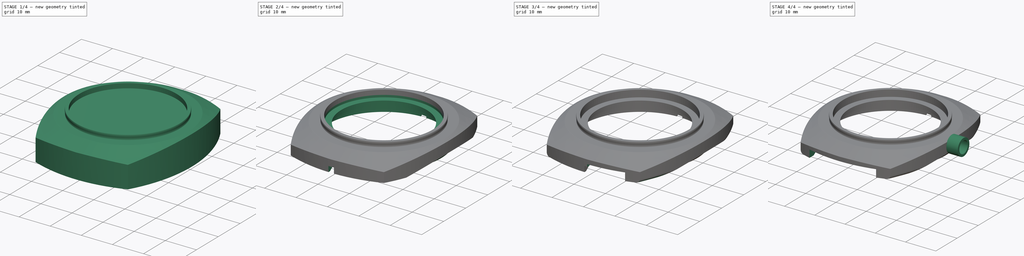
[diagram: build sequence overview — one tinted view per stage of 4, left to right]
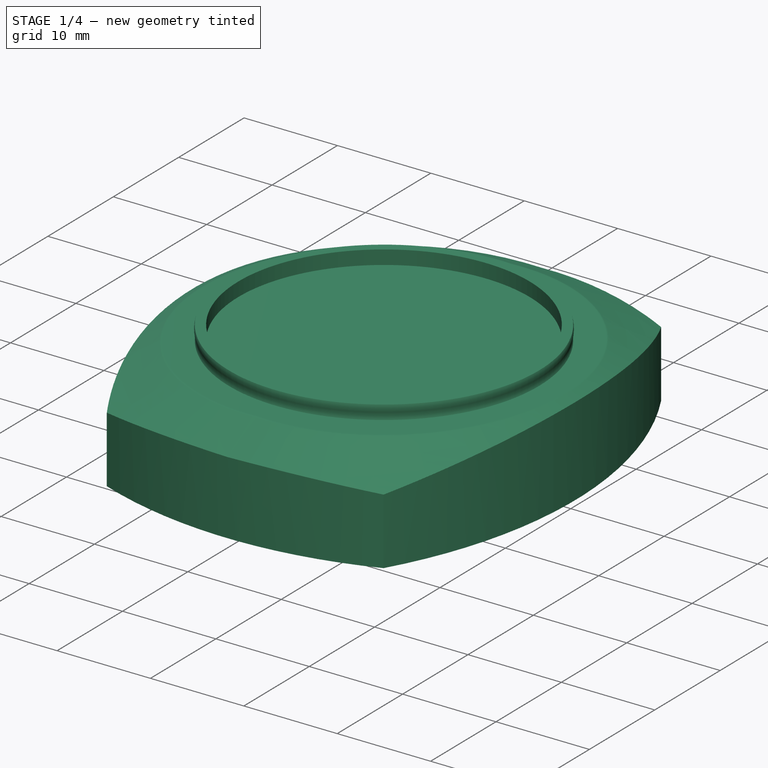
[diagram: stage 1 of 4 — iso view after this stage's code; geometry added in this stage tinted green]
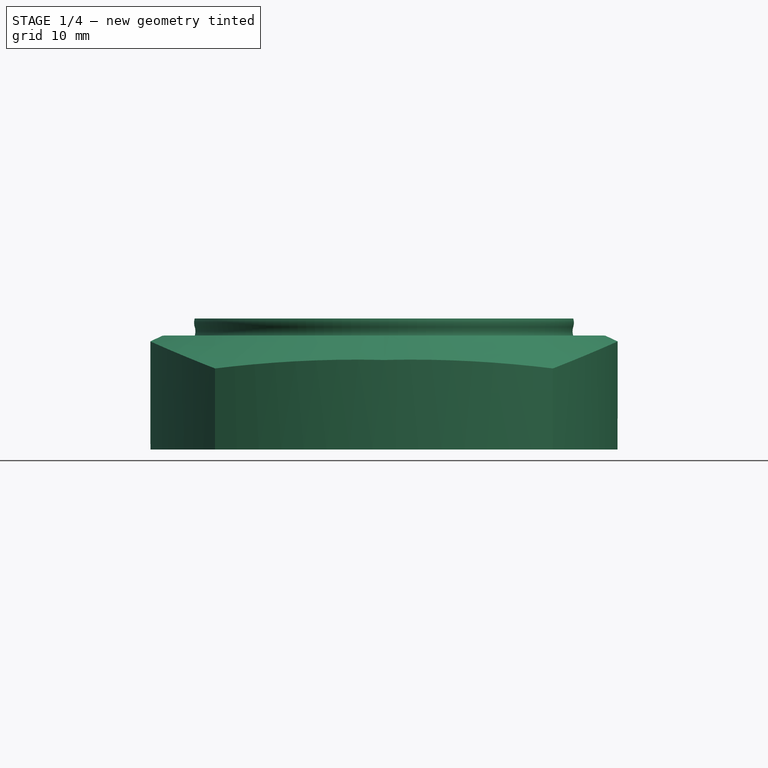
[diagram: stage 1 of 4 — front view after this stage's code; geometry added in this stage tinted green]
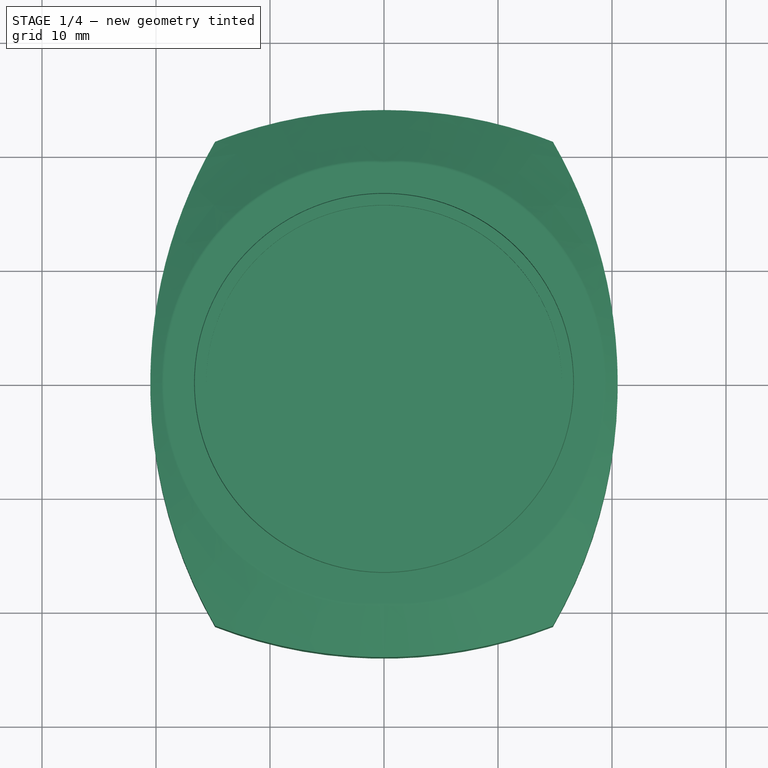
[diagram: stage 1 of 4 — top view after this stage's code; geometry added in this stage tinted green]
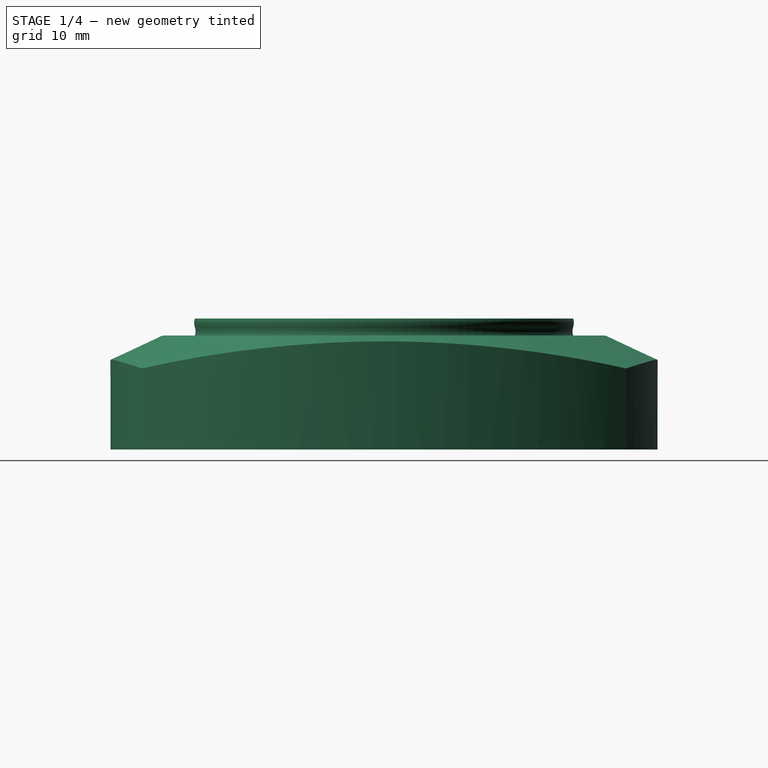
[diagram: stage 1 of 4 — right view after this stage's code; geometry added in this stage tinted green]
FCSTD DOCUMENT  (FreeCAD 0.19R20415 (Git))
Label: Vostok_Amphibia_Case_090
License: All rights reserved
LicenseURL: http://en.wikipedia.org/wiki/All_rights_reserved
objects: Sketcher::SketchObject×17, PartDesign::Plane×5, PartDesign::Mirrored×5, PartDesign::SubtractivePipe×3, PartDesign::Pocket×3, PartDesign::Pad×2, PartDesign::Groove×2, Image::ImagePlane×2, PartDesign::MultiTransform×2, PartDesign::Point×1, PartDesign::Revolution×1, PartDesign::Body×1
note: 53 computed .brp shape members not serialized (recipe doc carries the construction recipe); baked Part::Feature solids carry a one-line shape summary decoded from their .brp

FEATURE [PartDesign::Point] DatumPoint
  AttacherType = Attacher::AttachEnginePoint
FEATURE [Sketcher::SketchObject] Sketch009
  MapMode = 5
  Placement = pos=(0,0,10) rot=(0,0,1;0rad)
  sketch-geometry (7):
    g0: ArcOfEllipse CenterX=0 CenterY=0 CenterZ=0 NormalX=0 NormalY=0 NormalZ=1 MajorRadius=23.015 MinorRadius=22 AngleXU=1.5708 StartAngle=0 EndAngle=3.14159
    g1: LineSegment [constr] StartX=0 StartY=23.015 StartZ=0 EndX=0 EndY=-23.015 EndZ=0
    g2: LineSegment [constr] StartX=-22 StartY=3.8e-15 StartZ=0 EndX=22 EndY=-3.8e-15 EndZ=0
    g3: GeomPoint X=-1.23e-14 Y=6.75945 Z=0
    g4: GeomPoint X=1.23e-14 Y=-6.75945 Z=0
    g5: LineSegment StartX=-10 StartY=20.5 StartZ=0 EndX=0 EndY=20.5 EndZ=0
    g6: LineSegment StartX=-7.1e-15 StartY=-20.5 StartZ=0 EndX=-10 EndY=-20.5 EndZ=0
  constraints (14):
    c: InternalAlignment(g1-g4 -> g0) x4
    c: PointOnObject(g0,g-1)
    c: Perpendicular(g-1,g1)
    c: DistanceX(g2) = -22
    c: PointOnObject(g1,g-2)
    c: PointOnObject(g0,g-2)
    c: PointOnObject(g0,g-2)
    c: PointOnObject(g5,g-2)
    c: Horizontal(g6)
    c: Symmetric(g6,g5,g-1)
    c: DistanceY(g6) = -20.5
    c: Symmetric(g5,g6,g2)
    c: DistanceX(g5) = -10
    c: PointOnObject(g6,g0)
FEATURE [PartDesign::Plane] DatumPlane
  Length = 60
  MapMode = 5
  Placement = pos=(0,0,0) rot=(0.57735,0.57735,0.57735;2.0944rad)
  ResizeMode = 0
  Support = -> [YZ_Plane]
  Width = 60
FEATURE [Sketcher::SketchObject] Sketch003
  MapMode = 5
  Placement = pos=(0,0,0) rot=(0.57735,0.57735,0.57735;2.0944rad)
  Support = -> [DatumPlane]
  sketch-geometry (6):
    g0: ArcOfCircle CenterX=-19.2887 CenterY=9.5 CenterZ=0 NormalX=0 NormalY=0 NormalZ=1 AngleXU=0 Radius=0.5 StartAngle=1.5708 EndAngle=2.00713
    g1: LineSegment StartX=-19.5 StartY=10 StartZ=0 EndX=-19.2887 EndY=10 EndZ=0
    g2: LineSegment StartX=-19.5 StartY=9.95315 StartZ=0 EndX=-29.3557 EndY=5.35739 EndZ=0
    g3: ArcOfCircle CenterX=-29.25 CenterY=5.13081 CenterZ=0 NormalX=0 NormalY=0 NormalZ=1 AngleXU=0 Radius=0.25 StartAngle=2.00713 EndAngle=3.14159
    g4: LineSegment StartX=-19.5 StartY=10 StartZ=0 EndX=-29.5 EndY=10 EndZ=0
    g5: LineSegment StartX=-29.5 StartY=10 StartZ=0 EndX=-29.5 EndY=5.13081 EndZ=0
FEATURE [Sketcher::SketchObject] Sketch011
  MapMode = 5
  Placement = pos=(0,0,0) rot=(0.57735,0.57735,0.57735;2.0944rad)
  Support = -> [DatumPlane]
  sketch-geometry (6):
    g0: LineSegment StartX=19.5 StartY=9.95315 StartZ=0 EndX=29.3557 EndY=5.35739 EndZ=0
    g1: ArcOfCircle CenterX=29.25 CenterY=5.13081 CenterZ=0 NormalX=0 NormalY=0 NormalZ=1 AngleXU=0 Radius=0.25 StartAngle=8e-16 EndAngle=1.13446
    g2: ArcOfCircle CenterX=19.2887 CenterY=9.5 CenterZ=0 NormalX=0 NormalY=0 NormalZ=1 AngleXU=0 Radius=0.5 StartAngle=1.13446 EndAngle=1.5708
    g3: LineSegment StartX=19.5 StartY=10 StartZ=0 EndX=19.2887 EndY=10 EndZ=0
    g4: LineSegment StartX=19.5 StartY=10 StartZ=0 EndX=29.5 EndY=10 EndZ=0
    g5: LineSegment StartX=29.5 StartY=10 StartZ=0 EndX=29.5 EndY=5.13081 EndZ=0
  constraints (16):
    c: Tangent(g0,g1) = 1.5708
    c: Tangent(g0,g2) = 1.5708
    c: Horizontal(g3)
    c: Tangent(g2,g3) = -1.5708
    c: Radius(g1) = 0.25
    c: Vertical(g0,g3)
    c: Radius(g2) = 0.5
    c: Coincident(g3,g4)
    c: Horizontal(g4)
    c: Coincident(g4,g5)
    c: Vertical(g5)
    c: Tangent(g5,g1) = 1.5708
    c: DistanceX(g4,g4) = 10
    c: DistanceY(g4) = 10
    c: Angle(g0,g4) = 0.436332
    c: DistanceX(g3) = 19.5
FEATURE [Sketcher::SketchObject] Sketch
  MapMode = 5
  Support = -> [XY_Plane]
  sketch-geometry (8):
    g0: ArcOfCircle CenterX=-22 CenterY=-8.7e-15 CenterZ=0 NormalX=0 NormalY=0 NormalZ=1 AngleXU=0 Radius=42.5 StartAngle=5.76017 EndAngle=6.8062
    g1: ArcOfCircle CenterX=22 CenterY=-6.2e-15 CenterZ=0 NormalX=0 NormalY=0 NormalZ=1 AngleXU=0 Radius=42.5 StartAngle=2.61858 EndAngle=3.6646
    g2: ArcOfCircle CenterX=-6.9e-15 CenterY=-17 CenterZ=0 NormalX=0 NormalY=0 NormalZ=1 AngleXU=0 Radius=41 StartAngle=1.201 EndAngle=1.9406
    g3: ArcOfCircle CenterX=-2e-15 CenterY=17 CenterZ=0 NormalX=0 NormalY=0 NormalZ=1 AngleXU=0 Radius=41 StartAngle=4.34259 EndAngle=5.08219
    g4: GeomPoint X=0 Y=24 Z=0
    g5: GeomPoint X=0 Y=-24 Z=0
    g6: GeomPoint X=20.5 Y=0 Z=0
    g7: GeomPoint X=-20.5 Y=0 Z=0
  constraints (20):
    c: Coincident(g2,g1)
    c: Coincident(g2,g0)
    c: Coincident(g3,g1)
    c: Coincident(g3,g0)
    c: Symmetric(g0,g1,g-2)
    c: Symmetric(g1,g0,g-2)
    c: PointOnObject(g4,g2)
    c: PointOnObject(g5,g3)
    c: PointOnObject(g5,g-2)
    c: DistanceY(g5,g4) = 48
    c: PointOnObject(g6,g0)
    c: PointOnObject(g7,g1)
    c: PointOnObject(g7,g-1)
    c: DistanceX(g7,g6) = 41
    c: PointOnObject(g6,g-1)
    c: Symmetric(g0,g1,g-2)
    c: Symmetric(g1,g1,g-1)
    c: Radius(g3) = 41
    c: Symmetric(g5,g4,g-1)
    c: Radius(g1) = 42.5
FEATURE [PartDesign::Pad] Pad
  AllowMultiFace = false
  Length = 10
  Length2 = 100
  Profile = -> Sketch
  Type = 0
FEATURE [Sketcher::SketchObject] Sketch001
  MapMode = 5
  Placement = pos=(0,0,0) rot=(1,0,0;1.5708rad)
  Support = -> [XZ_Plane]
  sketch-geometry (5):
    g0: LineSegment StartX=15.6 StartY=10 StartZ=0 EndX=15.6 EndY=11.5 EndZ=0
    g1: LineSegment StartX=15.6 StartY=11.5 StartZ=0 EndX=16.6 EndY=11.5 EndZ=0
    g2: ArcOfCircle CenterX=17.7924 CenterY=10.375 CenterZ=0 NormalX=0 NormalY=0 NormalZ=1 AngleXU=0 Radius=1.25 StartAngle=2.8369 EndAngle=3.44629
    g3: LineSegment StartX=15.6 StartY=10 StartZ=0 EndX=16.6 EndY=10 EndZ=0
    g4: ArcOfCircle CenterX=15.4076 CenterY=11.125 CenterZ=0 NormalX=0 NormalY=0 NormalZ=1 AngleXU=0 Radius=1.25 StartAngle=5.97849 EndAngle=6.58788
  constraints (15):
    c: Vertical(g0)
    c: Coincident(g0,g1)
    c: Horizontal(g1)
    c: Coincident(g0,g3)
    c: Horizontal(g3)
    c: Coincident(g2,g3)
    c: Coincident(g4,g1)
    c: DistanceX(g1,g1) = 1
    c: Tangent(g4,g2) = 1.5708
    c: Vertical(g1,g2)
    c: DistanceY(g0,g0) = 1.5
    c: Symmetric(g1,g2,g2)
    c: Radius(g4) = 1.25
    c: DistanceY(g2) = 10
    c: DistanceX(g0) = 15.6
FEATURE [PartDesign::Revolution] Revolution
  AllowMultiFace = false
  Angle = 360
  Axis = (0,-2e-16,1)
  Base = (0,0,0)
  BaseFeature = -> Pad
  Profile = -> Sketch001
  ReferenceAxis = -> Sketch001 [V_Axis]
  Reversed = true
FEATURE [PartDesign::Plane] DatumPlane001
  Length = 60
  MapMode = 5
  Placement = pos=(0,0,0) rot=(1,0,0;1.5708rad)
  ResizeMode = 0
  Support = -> [XZ_Plane]
  Width = 60
FEATURE [Sketcher::SketchObject] Sketch005
  MapMode = 5
  Placement = pos=(0,0,0) rot=(1,0,0;1.5708rad)
  Support = -> [DatumPlane001]
  sketch-geometry (6):
    g0: LineSegment StartX=-24.5 StartY=10 StartZ=0 EndX=-19.5 EndY=10 EndZ=0
    g1: LineSegment StartX=-24.5 StartY=10 StartZ=0 EndX=-24.5 EndY=7.46235 EndZ=0
    g2: ArcOfCircle CenterX=-19.2887 CenterY=9.5 CenterZ=0 NormalX=0 NormalY=0 NormalZ=1 AngleXU=0 Radius=0.5 StartAngle=1.57081 EndAngle=2.00713
    g3: LineSegment StartX=-19.5 StartY=10 StartZ=0 EndX=-19.2887 EndY=10 EndZ=0
    g4: LineSegment StartX=-19.5 StartY=9.95315 StartZ=0 EndX=-24.3557 EndY=7.68892 EndZ=0
    g5: ArcOfCircle CenterX=-24.25 CenterY=7.46235 CenterZ=0 NormalX=0 NormalY=0 NormalZ=1 AngleXU=0 Radius=0.25 StartAngle=2.00713 EndAngle=3.14159
  constraints (17):
    c: Horizontal(g0)
    c: DistanceY(g0) = 10
    c: DistanceX(g0) = -19.5
    c: DistanceX(g0,g0) = 5
    c: Coincident(g1,g0)
    c: Vertical(g1)
    c: Coincident(g3,g0)
    c: Coincident(g3,g2)
    c: Tangent(g3,g2)
    c: Horizontal(g3)
    c: Vertical(g2,g0)
    c: Radius(g2) = 0.5
    c: Tangent(g2,g4) = -1.5708
    c: Tangent(g4,g5) = -1.5708
    c: Tangent(g5,g1) = -1.5708
    c: Radius(g5) = 0.25
    c: Angle(g0,g4) = 0.436332
FEATURE [PartDesign::SubtractivePipe] SubtractivePipe
  AllowMultiFace = false
  AuxilleryCurvelinear = true
  AuxillerySpineTangent = false
  BaseFeature = -> Revolution
  Binormal = (0,0,0)
  Mode = 0
  Profile = -> Sketch003
  Sections = -> [Sketch005,Sketch011]
  Spine = -> Sketch009 [Edge1]
  SpineTangent = false
  Transformation = 1
  Transition = 2
FEATURE [PartDesign::Mirrored] Mirrored
  BaseFeature = -> SubtractivePipe
  MirrorPlane = -> YZ_Plane
  Originals = -> [SubtractivePipe]
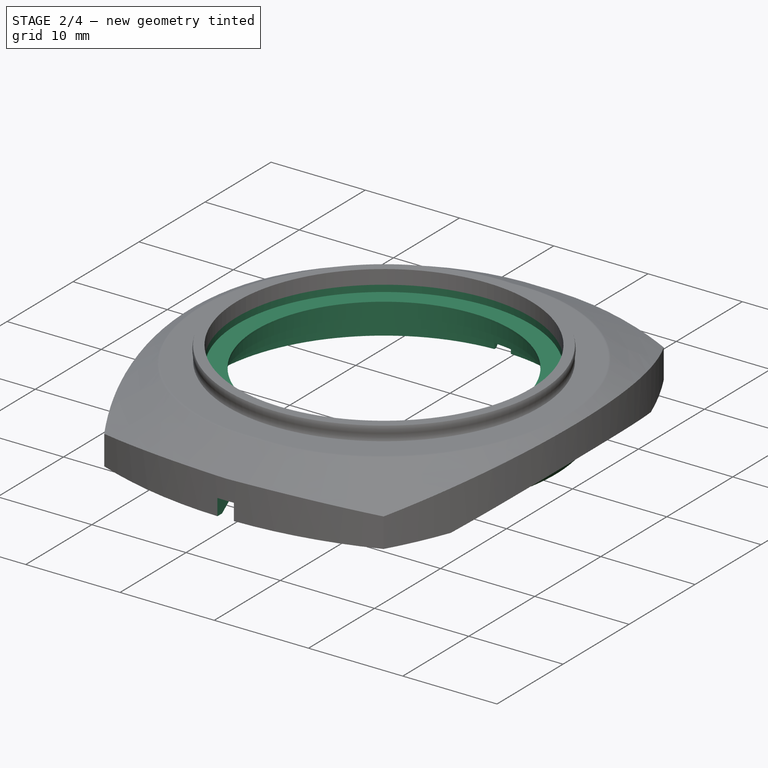
[diagram: stage 2 of 4 — iso view after this stage's code; geometry added in this stage tinted green]
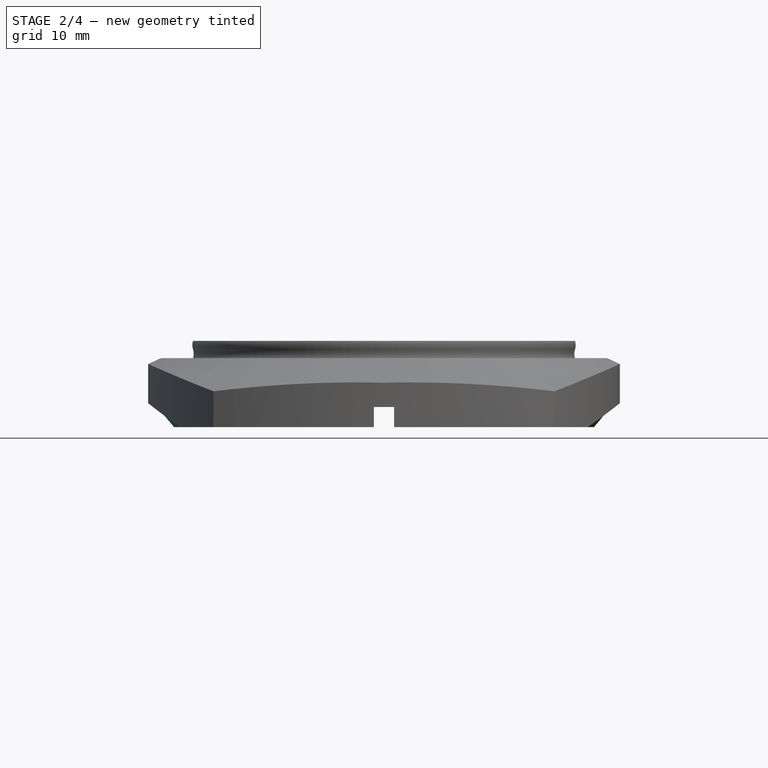
[diagram: stage 2 of 4 — front view after this stage's code; geometry added in this stage tinted green]
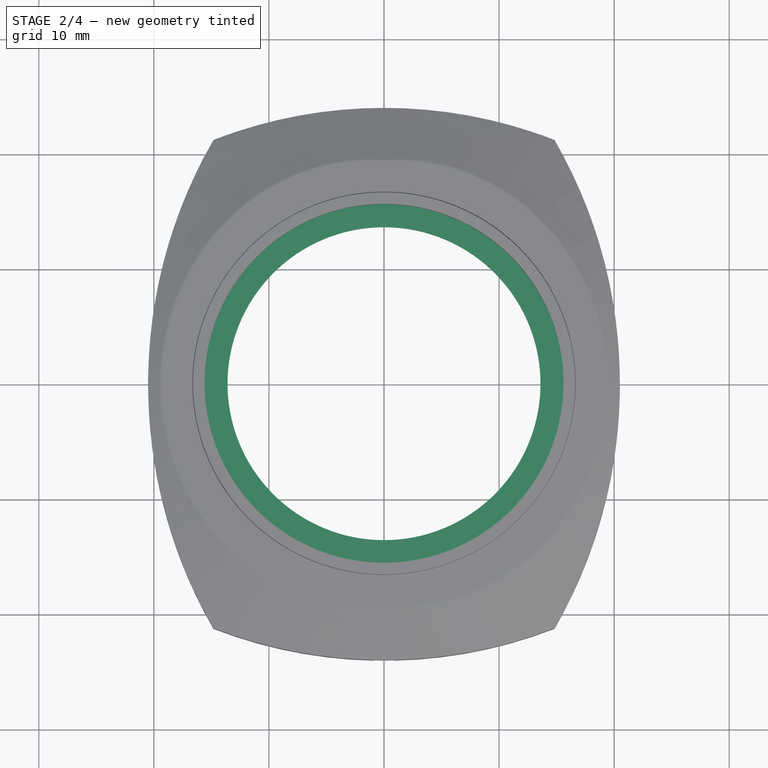
[diagram: stage 2 of 4 — top view after this stage's code; geometry added in this stage tinted green]
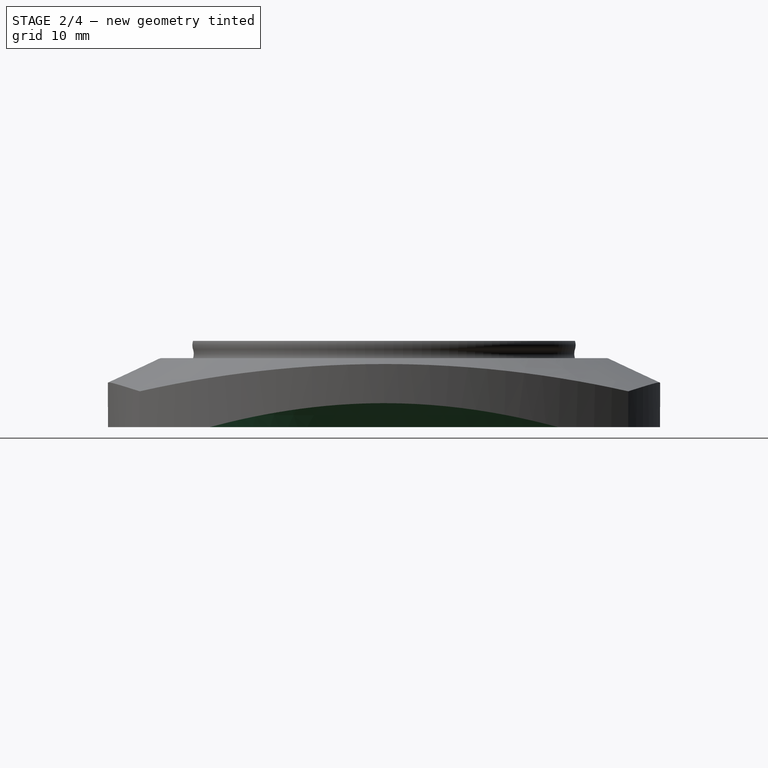
[diagram: stage 2 of 4 — right view after this stage's code; geometry added in this stage tinted green]
FEATURE [Sketcher::SketchObject] Sketch013
  MapMode = 5
  Placement = pos=(0,0,0) rot=(1,0,0;1.5708rad)
  Support = -> [XZ_Plane]
  sketch-geometry (4):
    g0: LineSegment StartX=-29.7309 StartY=0 StartZ=0 EndX=29.7309 EndY=0 EndZ=0
    g1: LineSegment StartX=29.7309 StartY=0 StartZ=0 EndX=29.7309 EndY=4 EndZ=0
    g2: LineSegment StartX=29.7309 StartY=4 StartZ=0 EndX=-29.7309 EndY=4 EndZ=0
    g3: LineSegment StartX=-29.7309 StartY=4 StartZ=0 EndX=-29.7309 EndY=0 EndZ=0
  constraints (10):
    c: Coincident(g0,g1)
    c: Coincident(g1,g2)
    c: Coincident(g2,g3)
    c: Coincident(g3,g0)
    c: Horizontal(g0)
    c: Vertical(g1)
    c: Vertical(g3)
    c: PointOnObject(g0,g-1)
    c: DistanceY(g1,g1) = 4
    c: Symmetric(g1,g2,g-2)
FEATURE [PartDesign::Pocket] Pocket
  AllowMultiFace = false
  BaseFeature = -> Mirrored
  Length = 5
  Length2 = 100
  Midplane = true
  Profile = -> Sketch013
  Type = 1
FEATURE [Sketcher::SketchObject] Sketch014
  MapMode = 5
  Placement = pos=(0,0,0) rot=(0.57735,0.57735,0.57735;2.0944rad)
  Support = -> [YZ_Plane]
  sketch-geometry (17):
    g0: LineSegment StartX=0 StartY=4 StartZ=0 EndX=18 EndY=4 EndZ=0
    g1: LineSegment StartX=18.25 StartY=4 StartZ=0 EndX=18.25 EndY=2 EndZ=0
    g2: LineSegment StartX=18.25 StartY=2 StartZ=0 EndX=26 EndY=2 EndZ=0
    g3: LineSegment StartX=0 StartY=4 StartZ=0 EndX=0 EndY=19.1 EndZ=0
    g4: LineSegment StartX=18 StartY=6 StartZ=0 EndX=15.5 EndY=6 EndZ=0
    g5: LineSegment StartX=15.5 StartY=6 StartZ=0 EndX=15.5 EndY=7.5 EndZ=0
    g6: LineSegment StartX=15.5 StartY=7.5 StartZ=0 EndX=14.25 EndY=7.5 EndZ=0
    g7: LineSegment StartX=14.25 StartY=7.5 StartZ=0 EndX=14.25 EndY=9.1 EndZ=0
    g8: LineSegment StartX=14.25 StartY=9.1 StartZ=0 EndX=13.6 EndY=9.1 EndZ=0
    g9: LineSegment StartX=15.6 StartY=19.1 StartZ=0 EndX=0 EndY=19.1 EndZ=0
    g10: LineSegment StartX=13.6 StartY=9.1 StartZ=0 EndX=13.6 EndY=9.3 EndZ=0
    g11: LineSegment StartX=13.6 StartY=9.3 StartZ=0 EndX=15.6 EndY=9.3 EndZ=0
    g12: LineSegment StartX=15.6 StartY=9.3 StartZ=0 EndX=15.6 EndY=19.1 EndZ=0
    g13: LineSegment StartX=18 StartY=6 StartZ=0 EndX=18 EndY=4 EndZ=0
    g14: LineSegment StartX=18.25 StartY=4 StartZ=0 EndX=20 EndY=6.08557 EndZ=0
    g15: LineSegment StartX=20 StartY=6.08557 StartZ=0 EndX=20.5 EndY=6.08557 EndZ=0
    g16: LineSegment StartX=20.5 StartY=6.08557 StartZ=0 EndX=26 EndY=2 EndZ=0
  constraints (51):
    c: Horizontal(g0)
    c: PointOnObject(g0,g-2)
    c: DistanceY(g0) = 4
    c: DistanceX(g0) = 18
    c: Horizontal(g1,g0)
    c: Vertical(g1)
    c: Coincident(g1,g2)
    c: Horizontal(g2)
    c: DistanceY(g1,g1) = 2
    c: Vertical(g3)
    c: Coincident(g3,g0)
    c: Horizontal(g4)
    c: Coincident(g4,g5)
    c: Vertical(g5)
    c: Coincident(g5,g6)
    c: Horizontal(g6)
    c: Coincident(g6,g7)
    c: Vertical(g7)
    c: DistanceY(g0,g4) = 2
    c: DistanceY(g5,g5) = 1.5
    c: Coincident(g7,g8)
    c: Horizontal(g8)
    c: Horizontal(g9)
    c: DistanceY(g8,g9) = 10
    c: Coincident(g3,g9)
    c: DistanceX(g6) = 14.25
    c: Coincident(g8,g10)
    c: Vertical(g10)
    c: Coincident(g10,g11)
    c: Horizontal(g11)
    c: Coincident(g11,g12)
    c: Coincident(g9,g12)
    c: DistanceY(g8,g10) = 0.2
    c: DistanceX(g4,g4) = 2.5
    c: DistanceY(g0,g11) = 5.3
    c: DistanceX(g9) = 15.6
    c: Vertical(g12)
    c: DistanceX(g11,g11) = 2
    c: Coincident(g13,g4)
    c: Coincident(g13,g0)
    c: Vertical(g13)
    c: DistanceX(g1) = 18.25
    c: Coincident(g1,g14)
    c: Angle(g2,g14) = 0.872665
    c: DistanceX(g2) = 26
    c: Coincident(g14,g15)
    c: Horizontal(g15)
    c: Coincident(g15,g16)
    c: Coincident(g16,g2)
    c: DistanceX(g15,g15) = 0.5
    c: DistanceX(g15) = 20.5
FEATURE [PartDesign::Groove] Groove
  AllowMultiFace = false
  Angle = 360
  Axis = (-2e-16,3e-16,1)
  Base = (0,0,0)
  BaseFeature = -> Pocket
  Profile = -> Sketch014
  ReferenceAxis = -> Sketch014 [V_Axis]
FEATURE [Sketcher::SketchObject] Sketch020
  MapMode = 5
  Placement = pos=(0,0,0) rot=(1,0,0;1.5708rad)
  Support = -> [XZ_Plane]
  sketch-geometry (4):
    g0: LineSegment StartX=-0.875 StartY=5.75 StartZ=0 EndX=0.875 EndY=5.75 EndZ=0
    g1: LineSegment StartX=0.875 StartY=5.75 StartZ=0 EndX=0.875 EndY=4 EndZ=0
    g2: LineSegment StartX=0.875 StartY=4 StartZ=0 EndX=-0.875 EndY=4 EndZ=0
    g3: LineSegment StartX=-0.875 StartY=4 StartZ=0 EndX=-0.875 EndY=5.75 EndZ=0
  constraints (11):
    c: Coincident(g0,g1)
    c: Coincident(g1,g2)
    c: Coincident(g2,g3)
    c: Coincident(g3,g0)
    c: Horizontal(g2)
    c: Vertical(g1)
    c: Vertical(g3)
    c: Equal(g0,g3)
    c: Symmetric(g0,g0,g-2)
    c: DistanceY(g3,g3) = 1.75
    c: DistanceY(g1) = 4
FEATURE [PartDesign::Pocket] Pocket001
  AllowMultiFace = false
  BaseFeature = -> Groove
  Length = 5
  Length2 = 100
  Midplane = true
  Profile = -> Sketch020
  Type = 1
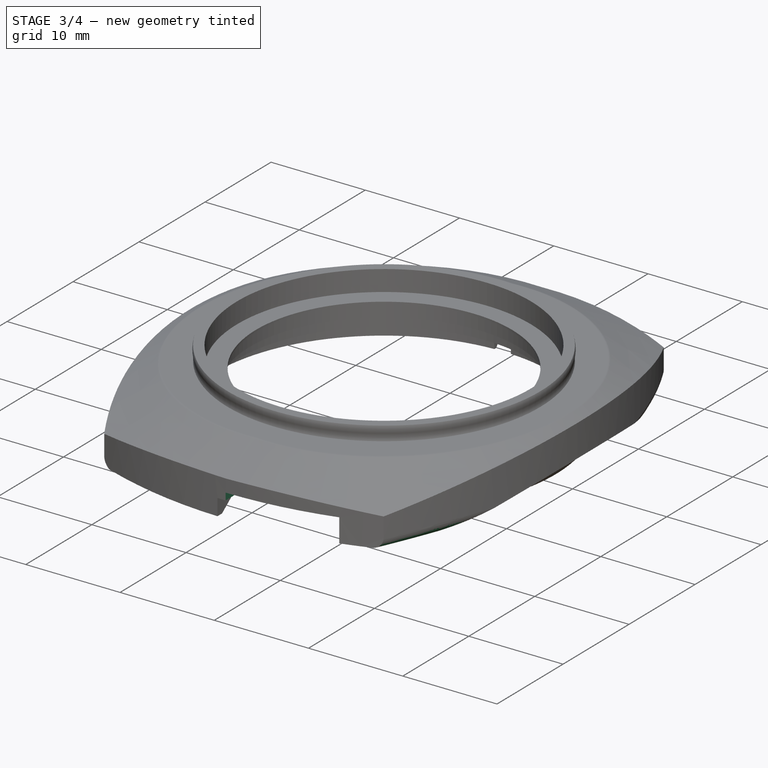
[diagram: stage 3 of 4 — iso view after this stage's code; geometry added in this stage tinted green]
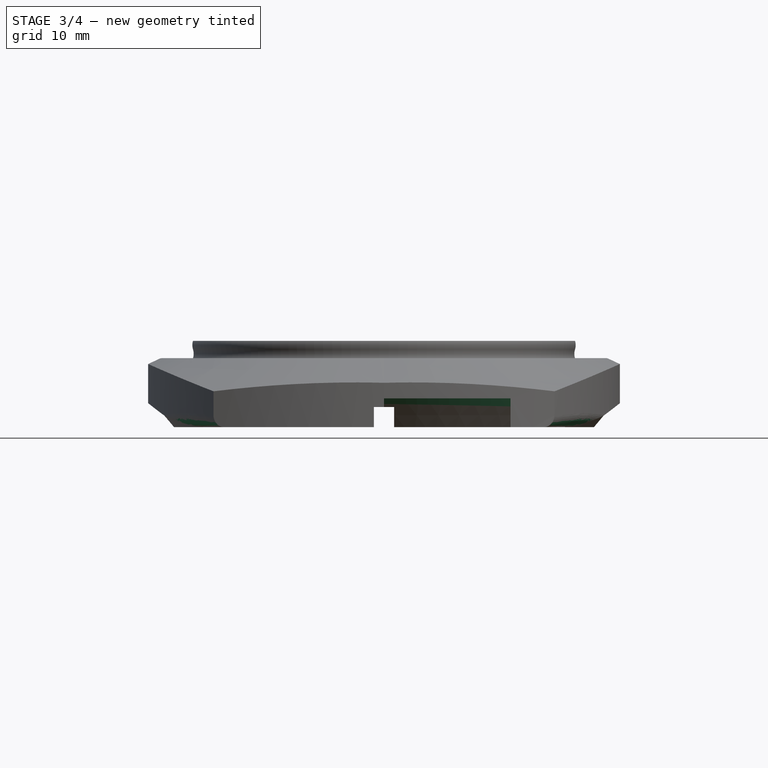
[diagram: stage 3 of 4 — front view after this stage's code; geometry added in this stage tinted green]
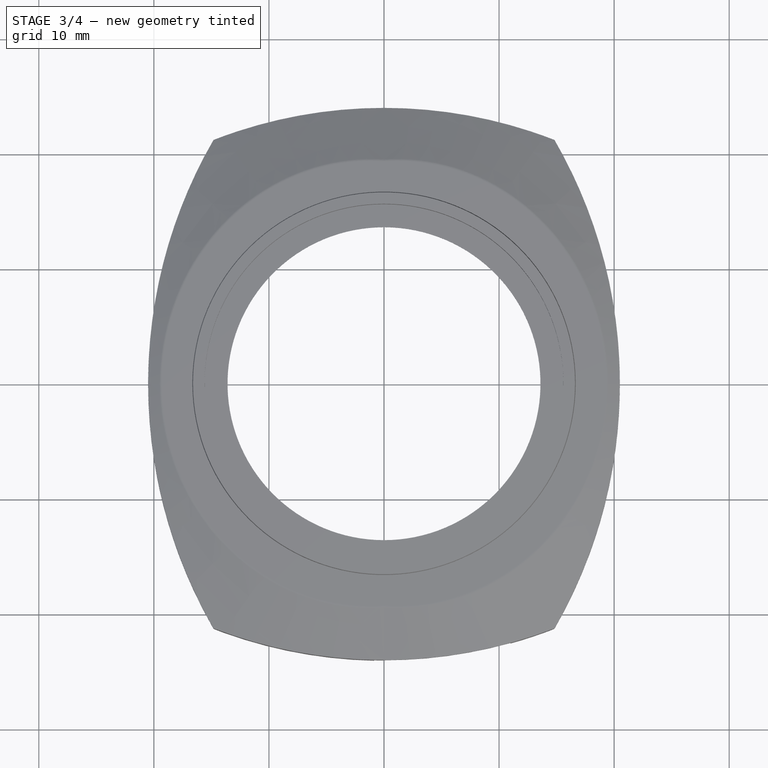
[diagram: stage 3 of 4 — top view after this stage's code; geometry added in this stage tinted green]
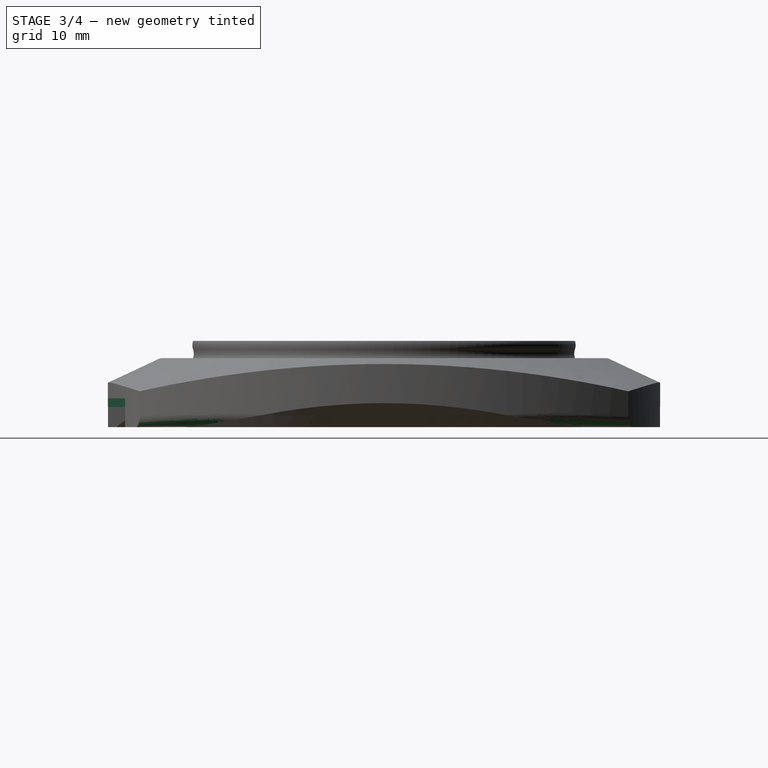
[diagram: stage 3 of 4 — right view after this stage's code; geometry added in this stage tinted green]
FEATURE [PartDesign::Plane] DatumPlane002
  AttachmentOffset = pos=(0,0,20.4) rot=(0,0,1;0rad)
  Length = 60
  MapMode = 2
  Placement = pos=(20.4,-4.5e-15,4.5e-15) rot=(0.57735,0.57735,0.57735;2.0944rad)
  ResizeMode = 0
  Support = -> [YZ_Plane]
  Width = 60
FEATURE [Sketcher::SketchObject] Sketch021  label="  "
  MapMode = 2
  Placement = pos=(20.4,-4.5e-15,4.5e-15) rot=(0.57735,0.57735,0.57735;2.0944rad)
  Support = -> [DatumPlane002]
  sketch-geometry (4):
    g0: LineSegment StartX=-4 StartY=20 StartZ=0 EndX=4 EndY=20 EndZ=0
    g1: LineSegment StartX=4 StartY=20 StartZ=0 EndX=4 EndY=0 EndZ=0
    g2: LineSegment StartX=4 StartY=0 StartZ=0 EndX=-4 EndY=0 EndZ=0
    g3: LineSegment StartX=-4 StartY=0 StartZ=0 EndX=-4 EndY=20 EndZ=0
  constraints (11):
    c: Coincident(g0,g1)
    c: Coincident(g1,g2)
    c: Coincident(g2,g3)
    c: Coincident(g3,g0)
    c: Horizontal(g2)
    c: Vertical(g1)
    c: Vertical(g3)
    c: Symmetric(g0,g0,g-2)
    c: DistanceX(g0,g0) = 8
    c: DistanceY(g1,g1) = 20
    c: PointOnObject(g-1,g2)
FEATURE [Sketcher::SketchObject] Sketch028
  MapMode = 5
  Placement = pos=(20.4,-4.5e-15,4.5e-15) rot=(-0.57735,0.57735,0.57735;4.18879rad)
  Support = -> [DatumPlane002]
  sketch-geometry (1):
    g0: Circle CenterX=0 CenterY=8 CenterZ=0 NormalX=0 NormalY=0 NormalZ=1 AngleXU=0 Radius=2.75
  constraints (3):
    c: PointOnObject(g0,g-2)
    c: DistanceY(g0) = 8
    c: Radius(g0) = 2.75
FEATURE [Sketcher::SketchObject] Sketch029
  MapMode = 5
  Placement = pos=(0,0,0) rot=(1,0,0;1.5708rad)
  Support = -> [XZ_Plane]
  sketch-geometry (6):
    g0: LineSegment StartX=0 StartY=8.75 StartZ=0 EndX=0 EndY=8 EndZ=0
    g1: LineSegment StartX=0 StartY=8 StartZ=0 EndX=25 EndY=8 EndZ=0
    g2: LineSegment StartX=25 StartY=8 StartZ=0 EndX=25 EndY=10 EndZ=0
    g3: LineSegment StartX=25 StartY=10 StartZ=0 EndX=20.75 EndY=10 EndZ=0
    g4: LineSegment StartX=20.75 StartY=10 StartZ=0 EndX=20.75 EndY=8.75 EndZ=0
    g5: LineSegment StartX=20.75 StartY=8.75 StartZ=0 EndX=0 EndY=8.75 EndZ=0
  constraints (18):
    c: Coincident(g0,g1)
    c: Horizontal(g1)
    c: Coincident(g1,g2)
    c: Vertical(g2)
    c: Coincident(g2,g3)
    c: Horizontal(g3)
    c: Coincident(g3,g4)
    c: Vertical(g4)
    c: Coincident(g4,g5)
    c: Coincident(g5,g0)
    c: PointOnObject(g0,g-2)
    c: Vertical(g0)
    c: Horizontal(g5)
    c: DistanceY(g1) = 8
    c: DistanceY(g1,g4) = 0.75
    c: DistanceY(g2,g2) = 2
    c: DistanceX(g2) = 25
    c: DistanceX(g3) = 20.75
FEATURE [Image::ImagePlane] ImagePlane
  Placement = pos=(0,0,10) rot=(0,0,1;0rad)
  XSize = 55.6981
  YSize = 55.6981
FEATURE [Image::ImagePlane] ImagePlane001
  Placement = pos=(1.2,2.5,4.5) rot=(-1,0,0;3.14159rad)
  XSize = 80.9152
  YSize = 54.0568
FEATURE [PartDesign::Plane] DatumPlane003
  AttachmentOffset = pos=(0,0,0) rot=(0,1,0;1.5708rad)
  Length = 75.907
  MapMode = 6
  Placement = pos=(17.7047,-15.1588,4) rot=(0.129298,0.701171,0.701171;2.88442rad)
  ResizeMode = 0
  Support = -> [Pocket001]
  Width = 61.3618
FEATURE [PartDesign::Plane] DatumPlane004
  Length = 76.0661
  MapMode = 6
  Placement = pos=(14.8185,-21.2284,4) rot=(0.966752,0.180817,0.180817;1.6046rad)
  ResizeMode = 0
  Support = -> [Pocket001]
  Width = 61.3747
FEATURE [Sketcher::SketchObject] Sketch033
  MapMode = 5
  Placement = pos=(14.8185,-21.2284,4) rot=(0.966752,0.180817,0.180817;1.6046rad)
  Support = -> [DatumPlane004]
  sketch-geometry (9):
    g0: LineSegment StartX=0 StartY=1 StartZ=0 EndX=4 EndY=1 EndZ=0
    g1: LineSegment StartX=4 StartY=1 StartZ=0 EndX=4 EndY=-4 EndZ=0
    g2: LineSegment StartX=4 StartY=-4 StartZ=0 EndX=-1 EndY=-4 EndZ=0
    g3: LineSegment StartX=-1 StartY=-4 StartZ=0 EndX=-1 EndY=0 EndZ=0
    g4: LineSegment StartX=-0.272183 StartY=0.342893 StartZ=0 EndX=-0.342893 EndY=0.272183 EndZ=0
    g5: ArcOfCircle CenterX=-1 CenterY=0.929289 CenterZ=0 NormalX=0 NormalY=0 NormalZ=1 AngleXU=0 Radius=0.929289 StartAngle=4.71239 EndAngle=5.49779
    g6: ArcOfCircle CenterX=-0.929289 CenterY=1 CenterZ=0 NormalX=0 NormalY=0 NormalZ=1 AngleXU=0 Radius=0.929289 StartAngle=5.49779 EndAngle=6.28319
    g7: LineSegment [constr] StartX=0 StartY=1 StartZ=0 EndX=0 EndY=0 EndZ=0
    g8: LineSegment [constr] StartX=-1 StartY=0 StartZ=0 EndX=0 EndY=0 EndZ=0
  constraints (25):
    c: PointOnObject(g3,g-1)
    c: Horizontal(g0)
    c: Coincident(g0,g1)
    c: Vertical(g1)
    c: Coincident(g1,g2)
    c: Horizontal(g2)
    c: Coincident(g2,g3)
    c: Vertical(g3)
    c: Equal(g3,g0)
    c: DistanceX(g2,g2) = 5
    c: Tangent(g4,g5) = 1.5708
    c: Coincident(g5,g3)
    c: DistanceX(g3,g0) = 1
    c: Equal(g5,g6)
    c: Tangent(g6,g4) = 1.5708
    c: Perpendicular(g6,g0)
    c: Coincident(g6,g0)
    c: Perpendicular(g5,g3)
    c: PointOnObject(g0,g-2)
    c: Coincident(g7,g0)
    c: Coincident(g7,g-1)
    c: Coincident(g8,g3)
    c: Coincident(g8,g-1)
    c: Equal(g7,g8)
    c: Distance(g4) = 0.1
FEATURE [Sketcher::SketchObject] Sketch034
  MapMode = 5
  Placement = pos=(17.7047,-15.1588,4) rot=(0.129298,0.701171,0.701171;2.88442rad)
  Support = -> [DatumPlane003]
  sketch-geometry (9):
    g0: LineSegment StartX=-5 StartY=-5 StartZ=0 EndX=1.25 EndY=-5 EndZ=0
    g1: LineSegment StartX=1.25 StartY=-5 StartZ=0 EndX=1.25 EndY=0 EndZ=0
    g2: LineSegment StartX=-5 StartY=-5 StartZ=0 EndX=-5 EndY=1.25 EndZ=0
    g3: LineSegment StartX=-5 StartY=1.25 StartZ=0 EndX=0 EndY=1.25 EndZ=0
    g4: LineSegment StartX=0.345406 StartY=0.416117 StartZ=0 EndX=0.416117 EndY=0.345406 EndZ=0
    g5: ArcOfCircle CenterX=1.25 CenterY=1.17929 CenterZ=0 NormalX=0 NormalY=0 NormalZ=1 AngleXU=0 Radius=1.17929 StartAngle=3.92699 EndAngle=4.71239
    g6: ArcOfCircle CenterX=1.17929 CenterY=1.25 CenterZ=0 NormalX=0 NormalY=0 NormalZ=1 AngleXU=0 Radius=1.17929 StartAngle=3.14159 EndAngle=3.92699
    g7: LineSegment [constr] StartX=0 StartY=1.25 StartZ=0 EndX=0 EndY=0 EndZ=0
    g8: LineSegment [constr] StartX=1.25 StartY=0 StartZ=0 EndX=0 EndY=0 EndZ=0
  constraints (25):
    c: Horizontal(g0)
    c: Coincident(g0,g1)
    c: Vertical(g1)
    c: Vertical(g2)
    c: Coincident(g2,g3)
    c: Horizontal(g3)
    c: Coincident(g2,g0)
    c: Equal(g3,g1)
    c: DistanceX(g3,g3) = 5
    c: PointOnObject(g3,g-2)
    c: DistanceY(g-1,g3) = 1.25
    c: PointOnObject(g1,g-1)
    c: Tangent(g4,g5) = -1.5708
    c: Tangent(g4,g6) = -1.5708
    c: Equal(g5,g6)
    c: Perpendicular(g6,g3)
    c: Coincident(g6,g3)
    c: Perpendicular(g5,g1)
    c: Coincident(g5,g1)
    c: Coincident(g7,g3)
    c: Coincident(g7,g-1)
    c: Coincident(g8,g1)
    c: Coincident(g8,g-1)
    c: Equal(g8,g7)
    c: Distance(g4) = 0.1
FEATURE [PartDesign::SubtractivePipe] SubtractivePipe001
  AuxilleryCurvelinear = true
  AuxillerySpineTangent = false
  BaseFeature = -> Pocket001
  Binormal = (0,0,0)
  Mode = 0
  Profile = -> Sketch033
  Sections = -> [Sketch034]
  Spine = -> Pocket001 [Edge3]
  SpineTangent = false
  Transformation = 1
  Transition = 0
FEATURE [PartDesign::Mirrored] Mirrored001
  MirrorPlane = -> XZ_Plane
FEATURE [PartDesign::Mirrored] Mirrored002
  MirrorPlane = -> YZ_Plane
FEATURE [PartDesign::MultiTransform] MultiTransform
  BaseFeature = -> SubtractivePipe001
  Originals = -> [SubtractivePipe001]
  Transformations = -> [Mirrored001,Mirrored002]
FEATURE [Sketcher::SketchObject] Sketch035
  MapMode = 5
  Support = -> [XY_Plane]
  sketch-geometry (1):
    g0: ArcOfCircle CenterX=0 CenterY=0 CenterZ=0 NormalX=0 NormalY=0 NormalZ=1 AngleXU=0 Radius=24 StartAngle=4.71239 EndAngle=5.18851
  constraints (4):
    c: Coincident(g0,g-1)
    c: DistanceX(g0) = 11
    c: DistanceY(g0,g0) = 24
    c: PointOnObject(g0,g-2)
FEATURE [Sketcher::SketchObject] Sketch030
  ExternalGeometry = -> [Sketch035]
  MapMode = 5
  Placement = pos=(0,0,0) rot=(0.57735,0.57735,0.57735;2.0944rad)
  Support = -> [YZ_Plane]
  sketch-geometry (4):
    g0: LineSegment StartX=-25 StartY=6.5 StartZ=0 EndX=-21 EndY=6.5 EndZ=0
    g1: LineSegment StartX=-21 StartY=6.5 StartZ=0 EndX=-18.8183 EndY=3.9 EndZ=0
    g2: LineSegment StartX=-18.8183 StartY=3.9 StartZ=0 EndX=-25 EndY=3.9 EndZ=0
    g3: LineSegment StartX=-25 StartY=3.9 StartZ=0 EndX=-25 EndY=6.5 EndZ=0
  constraints (12):
    c: Horizontal(g0)
    c: Coincident(g0,g1)
    c: Coincident(g1,g2)
    c: Horizontal(g2)
    c: Coincident(g2,g3)
    c: Vertical(g3)
    c: Coincident(g0,g3)
    c: DistanceY(g0) = 6.5
    c: Angle(g1,g2) = 0.872665
    c: DistanceY(g3,g3) = 2.6
    c: DistanceX(g0,g0) = 4
    c: DistanceX(g-3,g0) = 3
FEATURE [Sketcher::SketchObject] Sketch031
  AttachmentOffset = pos=(0,0,11) rot=(0,0,1;0rad)
  ExternalGeometry = -> [Sketch035]
  MapMode = 5
  Placement = pos=(11,-2.4e-15,2.4e-15) rot=(0.57735,0.57735,0.57735;2.0944rad)
  Support = -> [YZ_Plane]
  expr: Constraints[7] = Sketch030.Constraints[7]
  expr: Constraints[8] = Sketch030.Constraints[8]
  expr: Constraints[9] = Sketch030.Constraints[9]
  sketch-geometry (4):
    g0: LineSegment StartX=-25.3307 StartY=6.5 StartZ=0 EndX=-18.3307 EndY=6.5 EndZ=0
    g1: LineSegment StartX=-18.3307 StartY=6.5 StartZ=0 EndX=-16.1491 EndY=3.9 EndZ=0
    g2: LineSegment StartX=-16.1491 StartY=3.9 StartZ=0 EndX=-25.3307 EndY=3.9 EndZ=0
    g3: LineSegment StartX=-25.3307 StartY=3.9 StartZ=0 EndX=-25.3307 EndY=6.5 EndZ=0
  constraints (12):
    c: Horizontal(g0)
    c: Coincident(g0,g1)
    c: Coincident(g1,g2)
    c: Horizontal(g2)
    c: Coincident(g2,g3)
    c: Vertical(g3)
    c: Coincident(g0,g3)
    c: DistanceY(g0) = 6.5
    c: Angle(g1,g2) = 0.872665
    c: DistanceY(g3,g3) = 2.6
    c: DistanceX(g0,g0) = 7
    c: DistanceX(g-3,g0) = 3
FEATURE [PartDesign::SubtractivePipe] SubtractivePipe002
  AuxilleryCurvelinear = true
  AuxillerySpineTangent = false
  BaseFeature = -> MultiTransform
  Binormal = (0,0,0)
  Mode = 0
  Profile = -> Sketch030
  Sections = -> [Sketch031]
  Spine = -> Sketch035 [Edge1]
  SpineTangent = false
  Transformation = 1
  Transition = 0
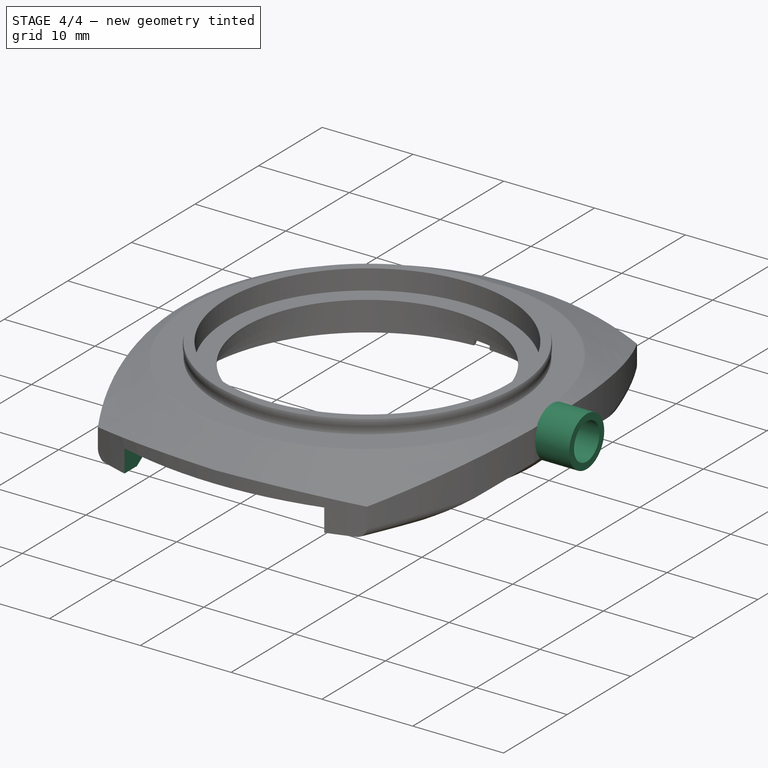
[diagram: stage 4 of 4 — iso view after this stage's code; geometry added in this stage tinted green]
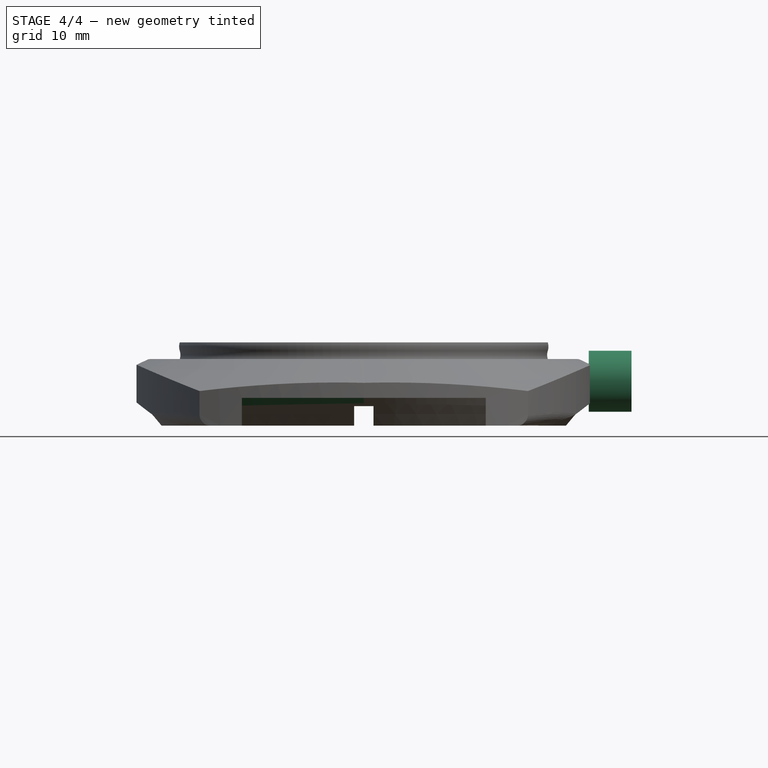
[diagram: stage 4 of 4 — front view after this stage's code; geometry added in this stage tinted green]
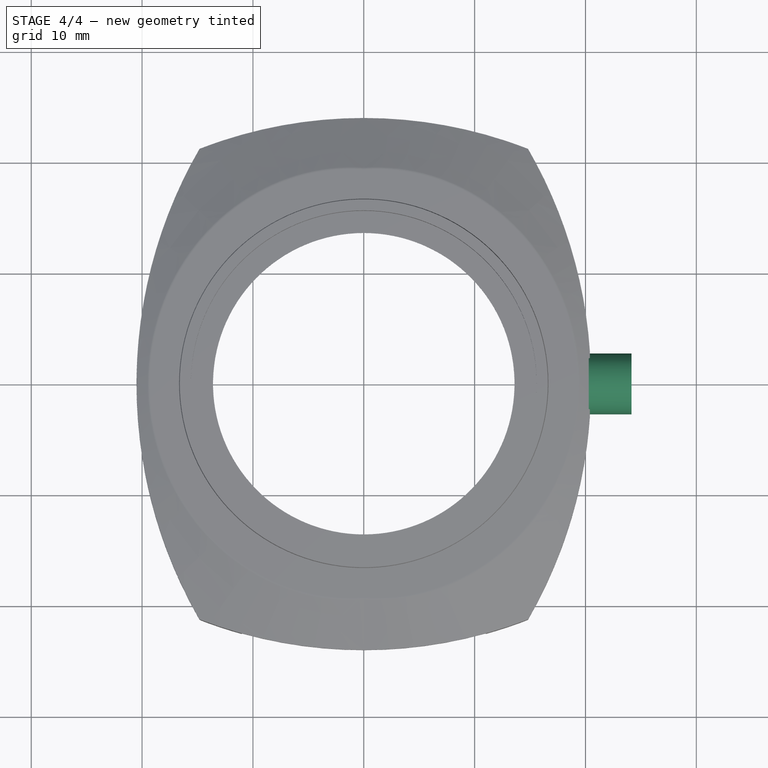
[diagram: stage 4 of 4 — top view after this stage's code; geometry added in this stage tinted green]
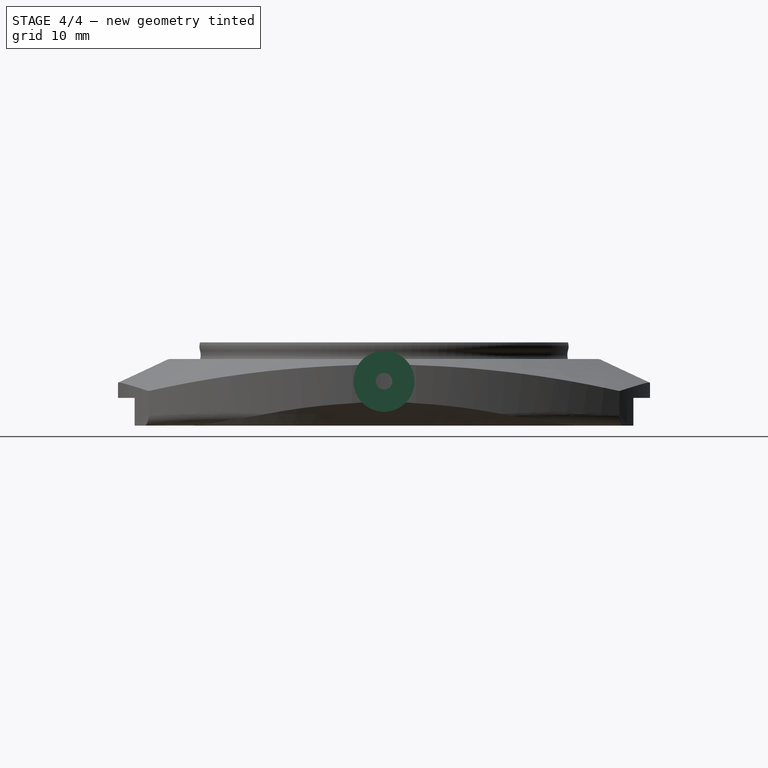
[diagram: stage 4 of 4 — right view after this stage's code; geometry added in this stage tinted green]
FEATURE [PartDesign::Mirrored] Mirrored003
  MirrorPlane = -> YZ_Plane
FEATURE [PartDesign::Mirrored] Mirrored004
  MirrorPlane = -> XZ_Plane
FEATURE [PartDesign::MultiTransform] MultiTransform001
  BaseFeature = -> SubtractivePipe002
  Originals = -> [SubtractivePipe002]
  Transformations = -> [Mirrored003,Mirrored004]
FEATURE [PartDesign::Pocket] Pocket002
  BaseFeature = -> MultiTransform001
  Length = 5
  Length2 = 100
  Profile = -> Sketch021
  Reversed = true
  Type = 0
FEATURE [PartDesign::Pad] Pad001
  BaseFeature = -> Pocket002
  Length = 0.1
  Length2 = 3.75
  Midplane = true
  Profile = -> Sketch028
  Reversed = true
  Type = 4
FEATURE [PartDesign::Groove] Groove001
  Angle = 360
  Axis = (1,0,0)
  Base = (0,-1.8e-15,8)
  BaseFeature = -> Pad001
  Profile = -> Sketch029
  ReferenceAxis = -> Sketch029 [Edge2]
  Reversed = true
FEATURE [PartDesign::Body] Body  label="090_Case"
  Group = -> [Sketch,Pad,Sketch001,Revolution,DatumPlane,DatumPlane001,DatumPoint,Sketch003,Sketch005,Sketch009,Sketch011,Sketch013,Sketch014,Sketch020,Sketch021,SubtractivePipe,Mirrored,Pocket,Groove,Pocket001,DatumPlane002,Sketch028,Sketch029,Sketch030,Sketch031,DatumPlane003,DatumPlane004,Sketch033,Sketch034,SubtractivePipe001,MultiTransform,Mirrored001,Mirrored002,Sketch035,SubtractivePipe002,+6 more]
  Origin = -> Origin
  Tip = -> Groove001
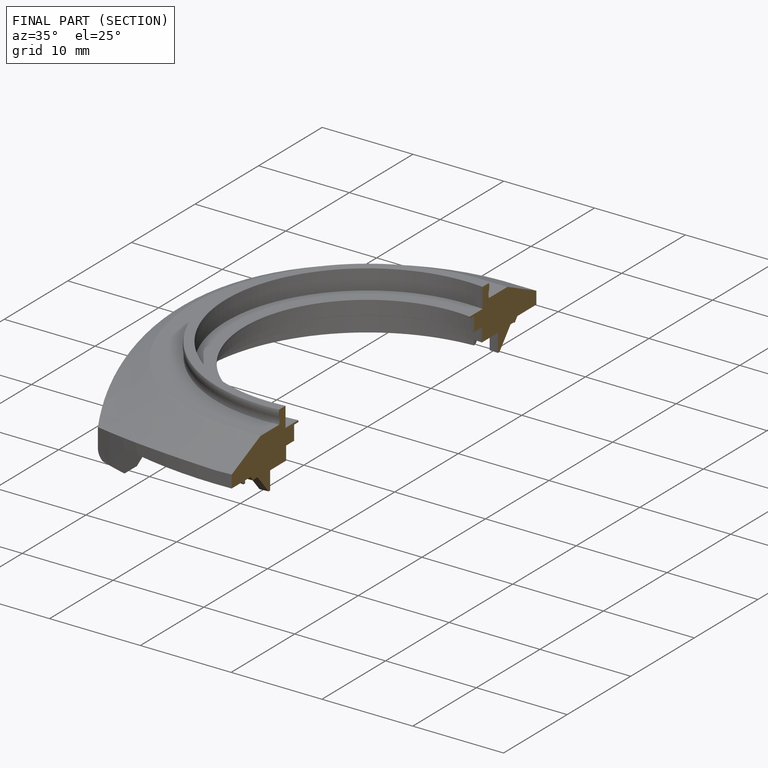
[diagram: finished part — half-section view (interior)]
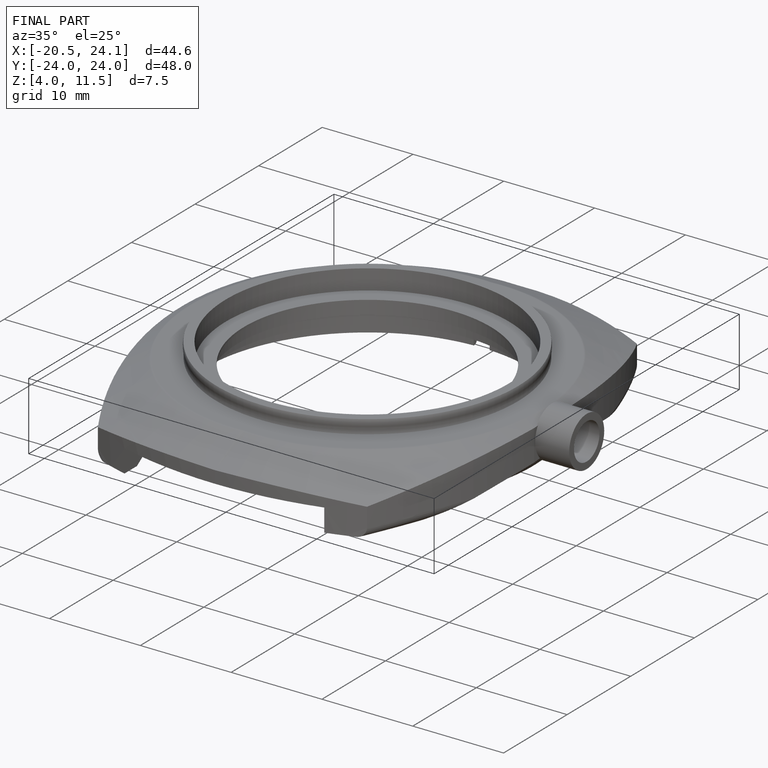
[diagram: finished part — iso view with bounding-box wireframe]
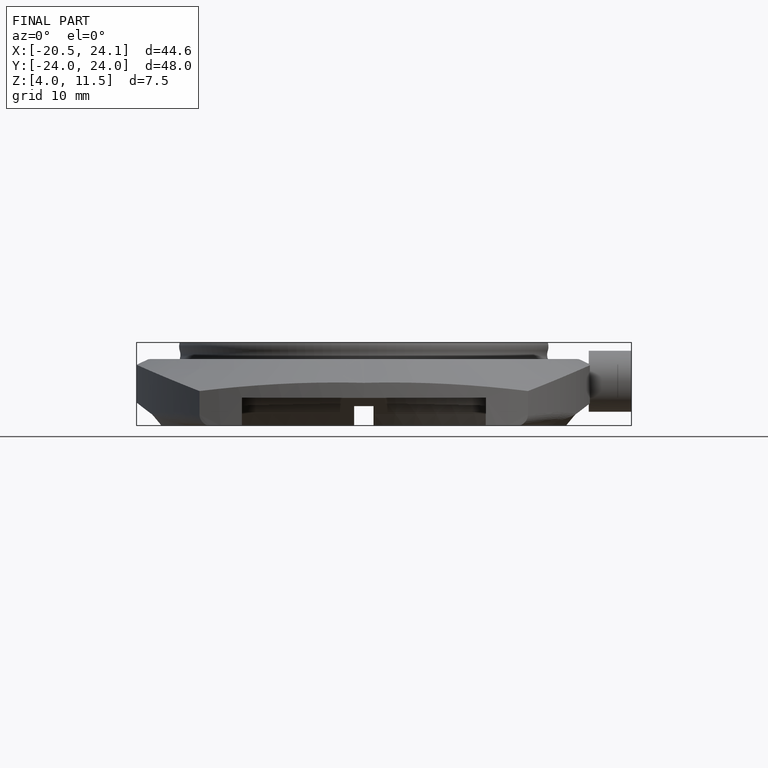
[diagram: finished part — front view with bounding-box wireframe]
